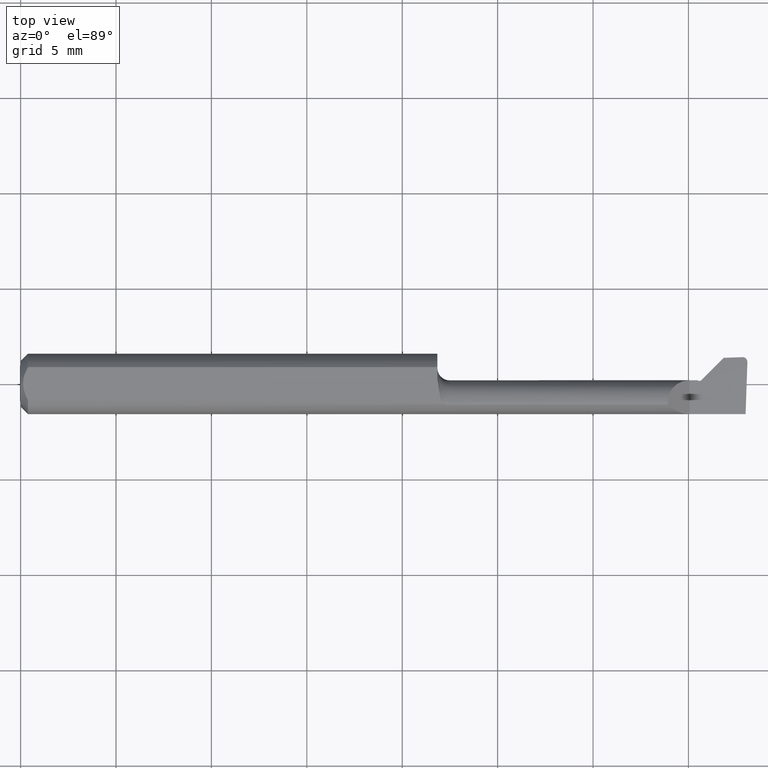
[diagram: clean part render]
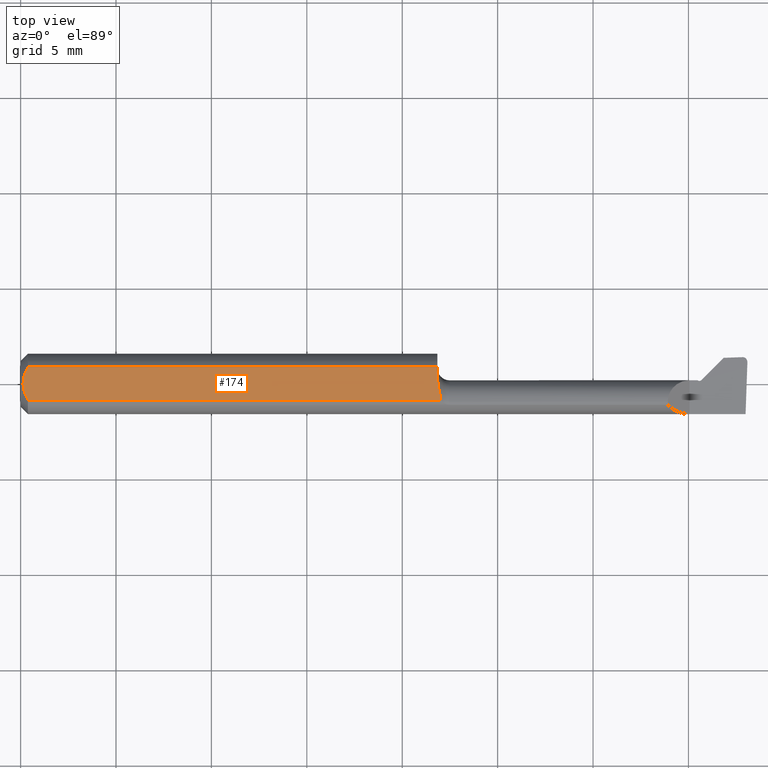
[diagram: same view with one face highlighted and labeled with its STEP entity id]
A machine part, top view. The second image highlights one B-rep face of the part: STEP entity #174.
In plain terms, the highlighted planar face has unit normal (-0, 0, -1).
Its self-contained STEP definition (entity closure, byte-faithful):
#19 = DIRECTION ( 'NONE',  ( -0.000000000000000000, 0.000000000000000000, -1.000000000000000000 ) ) ;
#31 = CARTESIAN_POINT ( 'NONE',  ( 0.01500000000000106977, 0.03386738844375219992, 0.05235000000000000764 ) ) ;
#40 = VERTEX_POINT ( 'NONE', #282 ) ;
#75 = VECTOR ( 'NONE', #781, 39.37007874015748143 ) ;
#81 = CARTESIAN_POINT ( 'NONE',  ( 0.01500000000000107150, -0.03386738844375219992, 0.05235000000000000764 ) ) ;
#132 = CARTESIAN_POINT ( 'NONE',  ( 0.8614076976283824294, -0.005335091224385434851, 0.05234999999999998682 ) ) ;
#137 = CARTESIAN_POINT ( 'NONE',  ( 0.8600000000000002087, 0.001792027575337490830, 0.05235000000000000764 ) ) ;
#142 = ORIENTED_EDGE ( 'NONE', *, *, #412, .F. ) ;
#153 = CARTESIAN_POINT ( 'NONE',  ( 0.005000000000001204002, 6.414153026140964483E-18, 0.05235000000000000764 ) ) ;
#156 = VERTEX_POINT ( 'NONE', #582 ) ;
#162 = FACE_OUTER_BOUND ( 'NONE', #227, .T. ) ;
#166 = CARTESIAN_POINT ( 'NONE',  ( 0.009663423781324755740, -0.02320891702790696745, 0.05234999999999997988 ) ) ;
#174 = ADVANCED_FACE ( 'NONE', ( #162 ), #431, .F. ) ;
#200 = CARTESIAN_POINT ( 'NONE',  ( 0.8667021453325344238, -0.02654967387527603154, 0.05235000000000002152 ) ) ;
#202 = EDGE_CURVE ( 'NONE', #734, #567, #218, .T. ) ;
#218 = B_SPLINE_CURVE_WITH_KNOTS ( 'NONE', 3,
 ( #236, #860, #232, #166, #516, #376 ),
 .UNSPECIFIED., .F., .F.,
 ( 4, 2, 4 ),
 ( 0.003138065481210465350, 0.003587221268396009223, 0.004036377055581553096 ),
 .UNSPECIFIED. ) ;
#227 = EDGE_LOOP ( 'NONE', ( #644, #493, #534, #722, #142, #742 ) ) ;
#229 = CARTESIAN_POINT ( 'NONE',  ( 0.005000000000001206604, 0.005922407101183814991, 0.05235000000000000764 ) ) ;
#232 = CARTESIAN_POINT ( 'NONE',  ( 0.006072086686447879418, -0.01191816614558190157, 0.05235000000000002152 ) ) ;
#236 = CARTESIAN_POINT ( 'NONE',  ( 0.005000000000001204002, 6.414153026140964483E-18, 0.05235000000000000764 ) ) ;
#279 = EDGE_CURVE ( 'NONE', #40, #399, #682, .T. ) ;
#282 = CARTESIAN_POINT ( 'NONE',  ( 0.8600000000000000977, 0.03386738844375219992, 0.05235000000000000764 ) ) ;
#311 = CARTESIAN_POINT ( 'NONE',  ( 0.006070804952378125105, 0.01191432965610325981, 0.05234999999999998682 ) ) ;
#321 = VECTOR ( 'NONE', #611, 39.37007874015748143 ) ;
#362 = B_SPLINE_CURVE_WITH_KNOTS ( 'NONE', 3,
 ( #825, #200, #766, #132, #137, #547 ),
 .UNSPECIFIED., .F., .F.,
 ( 4, 2, 4 ),
 ( 1.301042606982605321E-18, 0.0005545211062030423309, 0.001109042212406083361 ),
 .UNSPECIFIED. ) ;
#367 = EDGE_CURVE ( 'NONE', #156, #399, #362, .T. ) ;
#376 = CARTESIAN_POINT ( 'NONE',  ( 0.01500000000000107150, -0.03386738844375219992, 0.05235000000000000764 ) ) ;
#386 = CARTESIAN_POINT ( 'NONE',  ( 0.8600000000000000977, 0.009120178609512577181, 0.05235000000000000764 ) ) ;
#387 = CARTESIAN_POINT ( 'NONE',  ( 0.8600000000000000977, 0.04793338999999999933, 0.05235000000000000764 ) ) ;
#399 = VERTEX_POINT ( 'NONE', #386 ) ;
#412 = EDGE_CURVE ( 'NONE', #156, #567, #740, .T. ) ;
#431 = PLANE ( 'NONE',  #463 ) ;
#456 = CARTESIAN_POINT ( 'NONE',  ( 1.500000000000000222, -0.03386738844375219298, 0.05235000000000000764 ) ) ;
#463 = AXIS2_PLACEMENT_3D ( 'NONE', #513, #19, #520 ) ;
#493 = ORIENTED_EDGE ( 'NONE', *, *, #730, .F. ) ;
#509 = CARTESIAN_POINT ( 'NONE',  ( 0.009665130484206614983, 0.02321408954762992777, 0.05235000000000001458 ) ) ;
#513 = CARTESIAN_POINT ( 'NONE',  ( 0.000000000000000000, 0.04793338999999999933, 0.05235000000000000764 ) ) ;
#516 = CARTESIAN_POINT ( 'NONE',  ( 0.01215371382284716022, -0.02862736400430403172, 0.05235000000000000764 ) ) ;
#520 = DIRECTION ( 'NONE',  ( -1.000000000000000000, 0.000000000000000000, 0.000000000000000000 ) ) ;
#534 = ORIENTED_EDGE ( 'NONE', *, *, #728, .T. ) ;
#547 = CARTESIAN_POINT ( 'NONE',  ( 0.8600000000000000977, 0.009120178609512577181, 0.05235000000000000764 ) ) ;
#567 = VERTEX_POINT ( 'NONE', #81 ) ;
#582 = CARTESIAN_POINT ( 'NONE',  ( 0.8671801011883747412, -0.03386738844375219298, 0.05235000000000000764 ) ) ;
#592 = CARTESIAN_POINT ( 'NONE',  ( 0.01215148319993553973, 0.02862325741844276225, 0.05235000000000002152 ) ) ;
#611 = DIRECTION ( 'NONE',  ( 0.000000000000000000, -1.000000000000000000, 0.000000000000000000 ) ) ;
#644 = ORIENTED_EDGE ( 'NONE', *, *, #279, .F. ) ;
#646 = CARTESIAN_POINT ( 'NONE',  ( 0.01500000000000106977, 0.03386738844375219992, 0.05235000000000000764 ) ) ;
#667 = B_SPLINE_CURVE_WITH_KNOTS ( 'NONE', 3,
 ( #31, #592, #509, #311, #229, #786 ),
 .UNSPECIFIED., .F., .F.,
 ( 4, 2, 4 ),
 ( 0.002239757098154235813, 0.002688911289682350582, 0.003138065481210465350 ),
 .UNSPECIFIED. ) ;
#682 = LINE ( 'NONE', #387, #321 ) ;
#722 = ORIENTED_EDGE ( 'NONE', *, *, #202, .T. ) ;
#728 = EDGE_CURVE ( 'NONE', #801, #734, #667, .T. ) ;
#730 = EDGE_CURVE ( 'NONE', #801, #40, #792, .T. ) ;
#734 = VERTEX_POINT ( 'NONE', #153 ) ;
#740 = LINE ( 'NONE', #456, #748 ) ;
#742 = ORIENTED_EDGE ( 'NONE', *, *, #367, .T. ) ;
#748 = VECTOR ( 'NONE', #755, 39.37007874015748143 ) ;
#755 = DIRECTION ( 'NONE',  ( -1.000000000000000000, -0.000000000000000000, -0.000000000000000000 ) ) ;
#766 = CARTESIAN_POINT ( 'NONE',  ( 0.8647496609455294081, -0.01951404886546227735, 0.05235000000000001458 ) ) ;
#781 = DIRECTION ( 'NONE',  ( 1.000000000000000000, 0.000000000000000000, 0.000000000000000000 ) ) ;
#786 = CARTESIAN_POINT ( 'NONE',  ( 0.005000000000001204002, 6.414153026140964483E-18, 0.05235000000000000764 ) ) ;
#792 = LINE ( 'NONE', #866, #75 ) ;
#801 = VERTEX_POINT ( 'NONE', #646 ) ;
#825 = CARTESIAN_POINT ( 'NONE',  ( 0.8671801011883747412, -0.03386738844375219298, 0.05235000000000000764 ) ) ;
#860 = CARTESIAN_POINT ( 'NONE',  ( 0.005000000000001205737, -0.005922428141025035814, 0.05235000000000001458 ) ) ;
#866 = CARTESIAN_POINT ( 'NONE',  ( 1.500000000000000222, 0.03386738844375219298, 0.05235000000000000764 ) ) ;